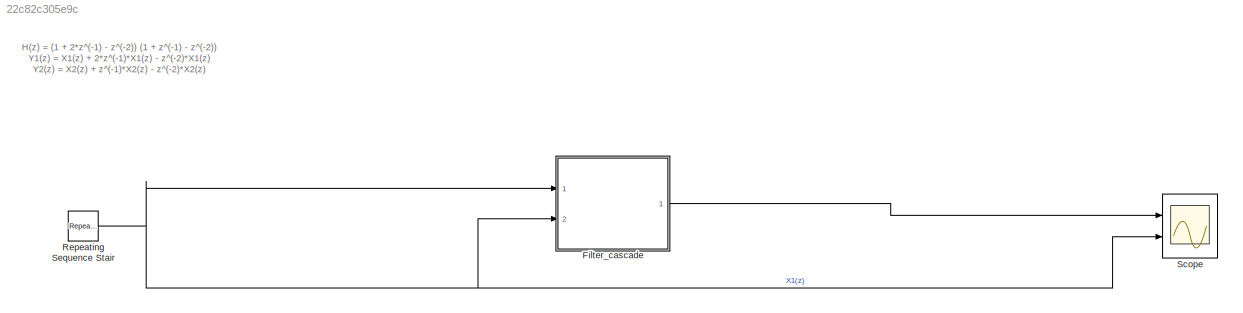
MODEL slx_22c82c305e9c
KIND model
CONFIG AbsTol = auto
CONFIG EnableMultiTasking = off
CONFIG FixedStep = auto
CONFIG MaxStep = auto
CONFIG MinStep = auto
CONFIG RelTol = 1e-3
CONFIG SampleTimeConstraint = Unconstrained
CONFIG Solver = VariableStepAuto
CONFIG SolverName = VariableStepAuto
CONFIG StartTime = 0.0
CONFIG StopTime = 10.0
BLOCK [ModelReference] Filter_cascade
  ModelNameDialog = Filter_cascade
  ModelReferenceVersion = 1.3
  Ports = [2, 1]
BLOCK [Reference] Repeating Sequence Stair  REF=simulink/Sources/Repeating
Sequence
Stair
  Ports = [0, 1]
  SourceBlock = simulink/Sources/Repeating\nSequence\nStair
  SourceProductBaseCode = SL
  SourceType = Repeating Sequence Stair
BLOCK [Scope] Scope
  Floating = off
  NumInputPorts = 2
  Ports = [2]
  ScopeSpecificationString = Simulink.scopes.TimeScopeBlockCfg('CurrentConfiguration', extmgr.ConfigurationSet(extmgr.Configuration('Core','General UI',true),extmgr.Configuration('Core','Source UI',true),extmgr.Configuration('Sources','WiredSimulink',true),extmgr.Configuration('Visuals','Time Domain',true,'SerializedDisplays',{struct('MinYLimReal','-6.875','MaxYLimReal','11.875','YLabelReal','','MinYLimMag','0.00000','MaxYLim...<+2025ch>
ANNOTATION (root): H(z) = (1 + 2*z^(-1) - z^(-2)) (1 + z^(-1) - z^(-2)) Y1(z) = X1(z) + 2*z^(-1)*X1(z) - z^(-2)*X1(z) Y2(z) = X2(z) + z^(-1)*X2(z) - z^(-2)*X2(z)
LINE Filter_cascade:1 -> Scope:1
NET Repeating Sequence Stair:1 -> Filter_cascade:1, Filter_cascade:2, Scope:2
note: NET lines group one-source signal fan-out (src -> all destinations, sorted); 1:1 wires keep LINE
